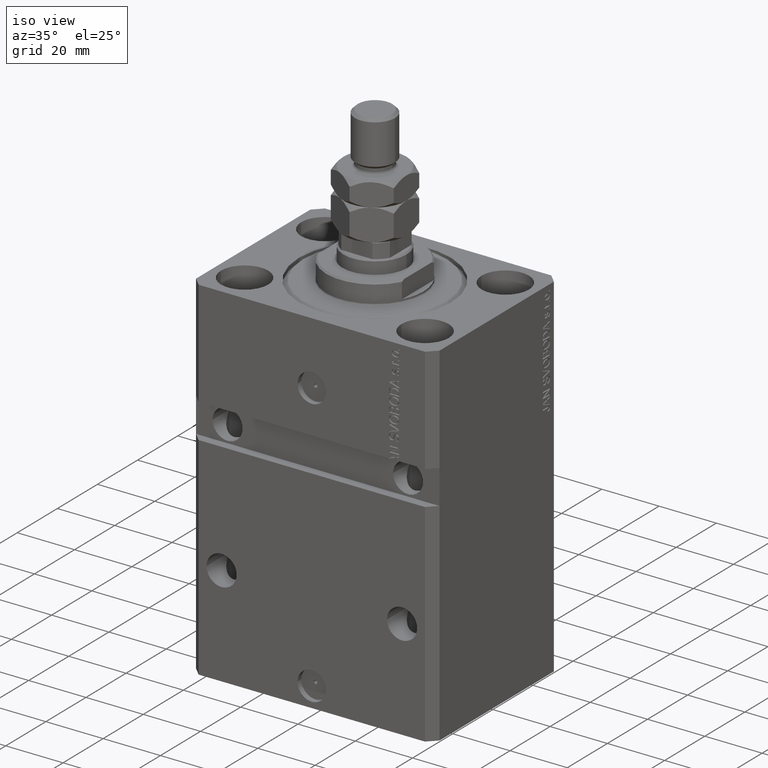
[diagram: clean part render]
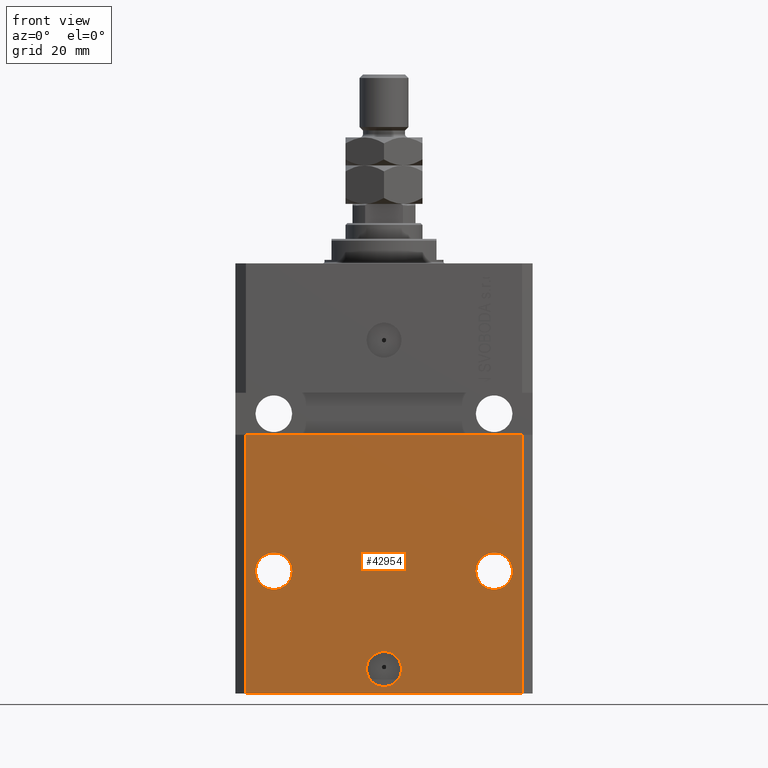
[diagram: tour spotlight — one face highlighted and labeled with its STEP entity id]
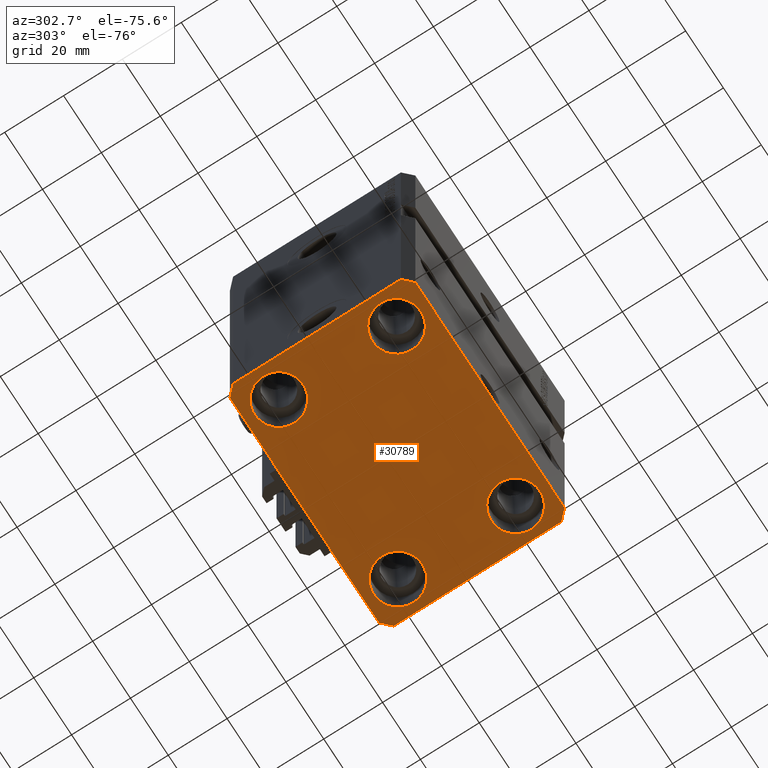
[diagram: tour spotlight — one face highlighted and labeled with its STEP entity id]
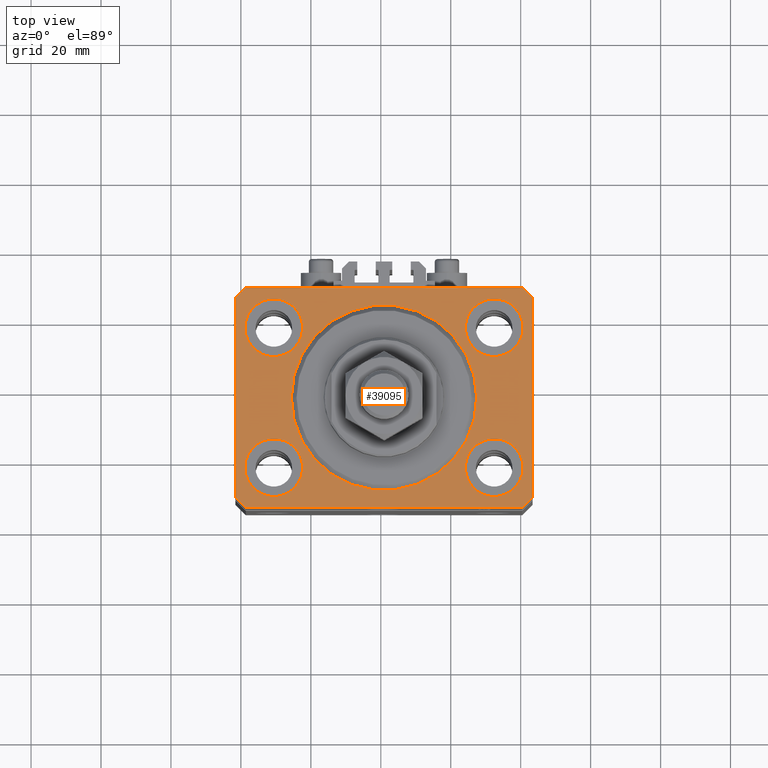
[diagram: tour spotlight — one face highlighted and labeled with its STEP entity id]
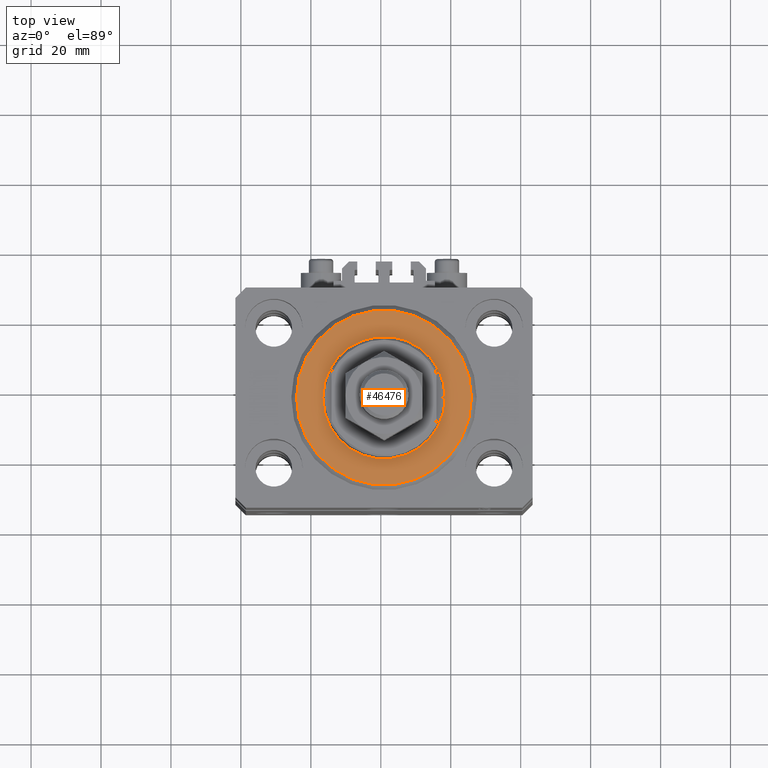
[diagram: tour spotlight — one face highlighted and labeled with its STEP entity id]
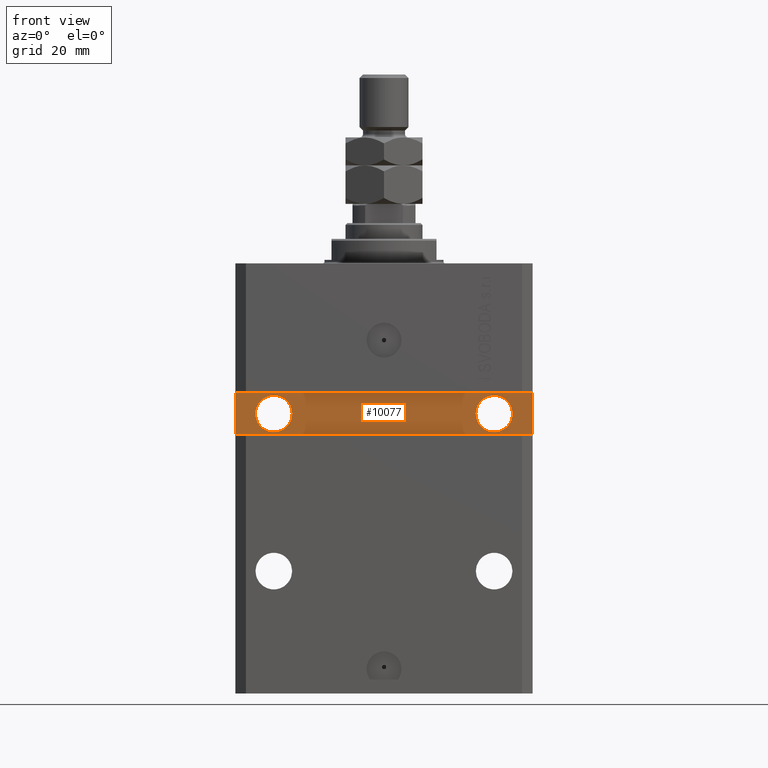
[diagram: tour spotlight — one face highlighted and labeled with its STEP entity id]
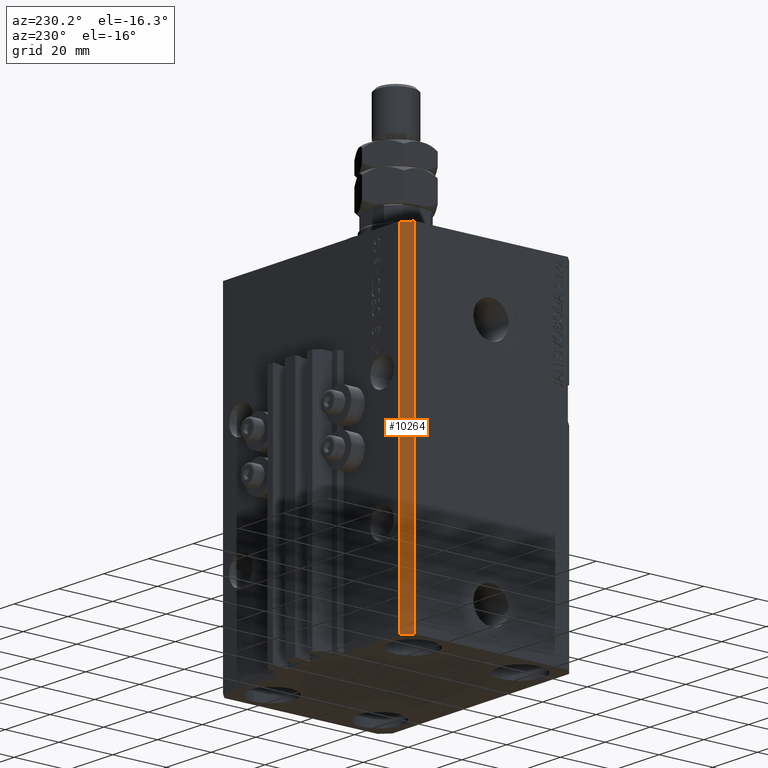
[diagram: tour spotlight — one face highlighted and labeled with its STEP entity id]
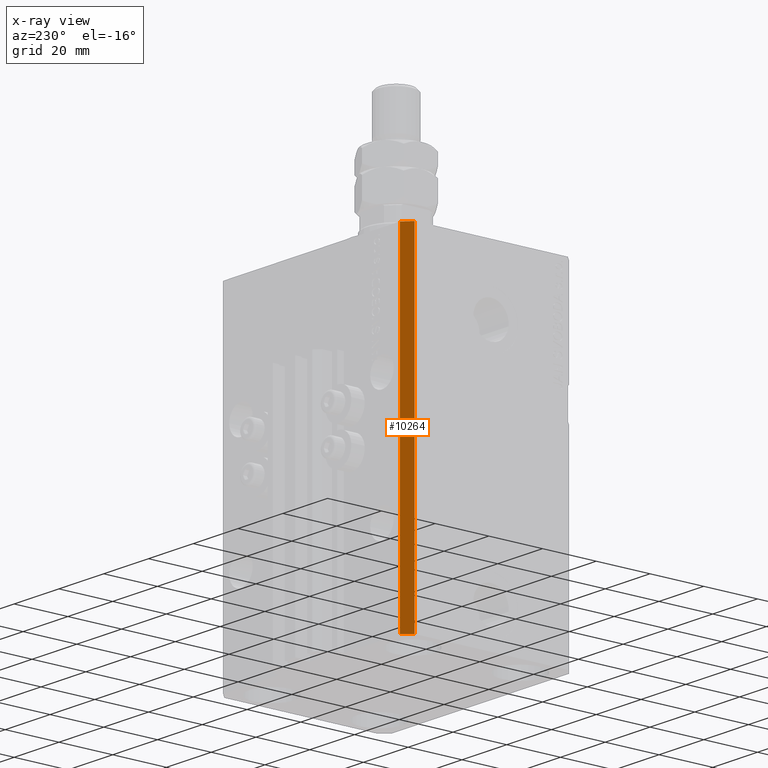
[diagram: x-ray of the same camera — body ghosted, this tour face saturated]
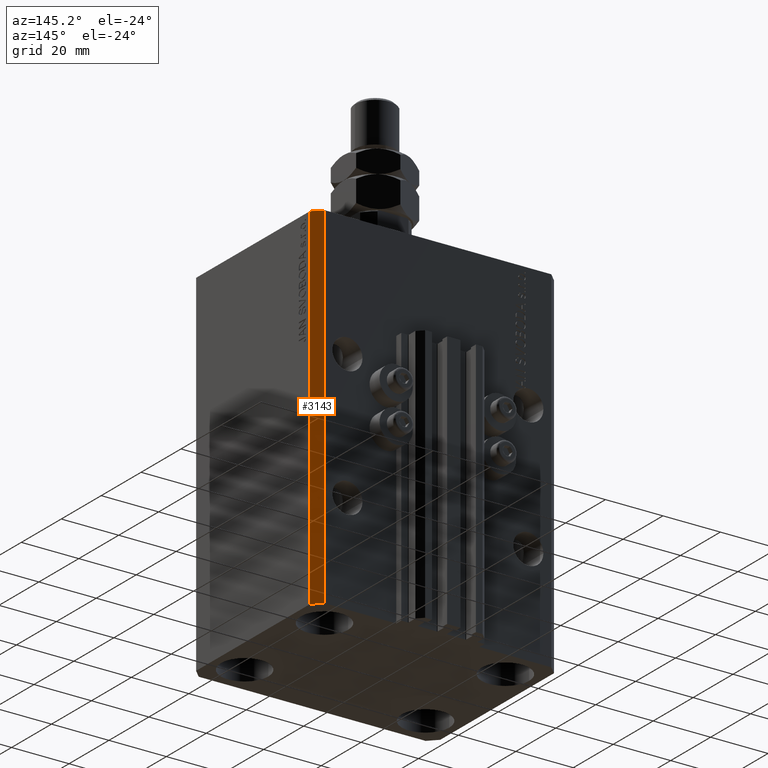
[diagram: tour spotlight — one face highlighted and labeled with its STEP entity id]
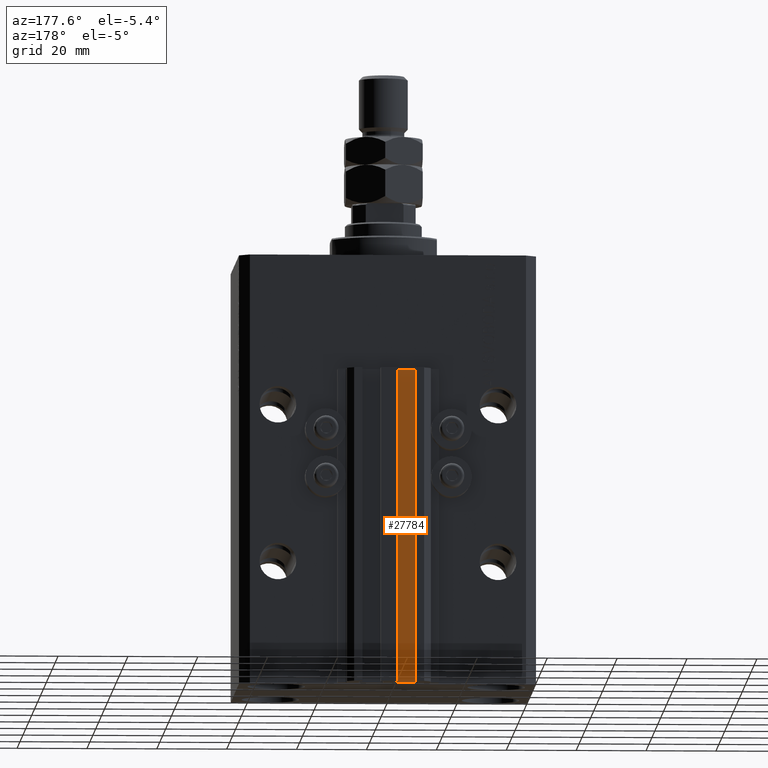
[diagram: tour spotlight — one face highlighted and labeled with its STEP entity id]
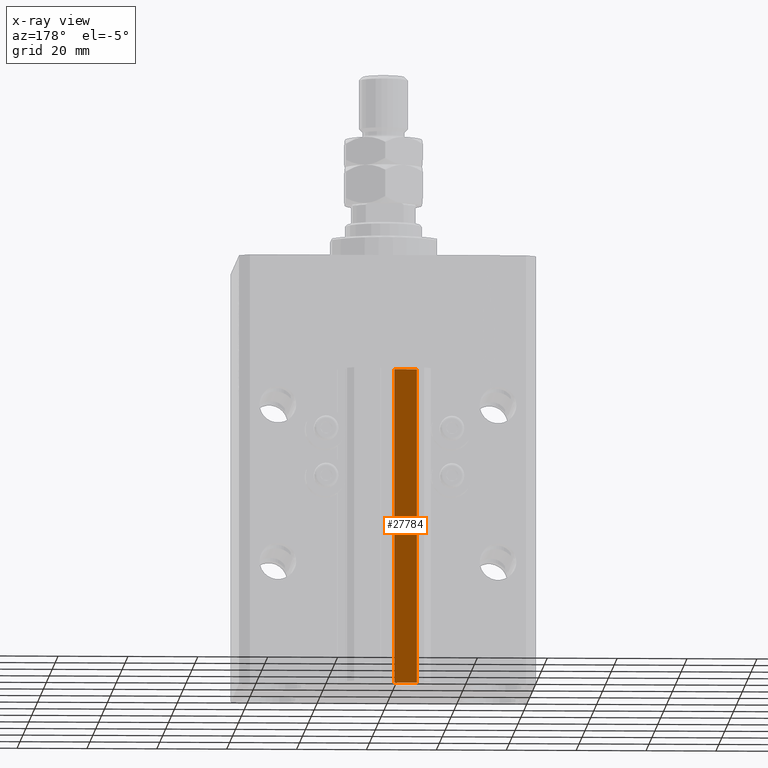
[diagram: x-ray of the same camera — body ghosted, this tour face saturated]
A machine part: a face-by-face anatomy tour. The part has 1156 B-rep faces; the first image is the clean iso view, then the 8 largest visible faces are spotlighted one at a time (largest first), each with its STEP entity span.

Face 1 — front view, entity #42954. In plain terms, the highlighted planar face has unit normal (0, -1, 0).
Definition (entity closure, byte-faithful):
#1673 = CARTESIAN_POINT ( 'NONE',  ( -39.50000000000000711, -31.50000000000000000, -123.0000000000000000 ) ) ;
#1961 = EDGE_LOOP ( 'NONE', ( #27546, #15098 ) ) ;
#2257 = DIRECTION ( 'NONE',  ( 1.176083712526788232E-16, -1.000000000000000000, 0.000000000000000000 ) ) ;
#2286 = EDGE_CURVE ( 'NONE', #9769, #32491, #36152, .T. ) ;
#2619 = VECTOR ( 'NONE', #4843, 1000.000000000000000 ) ;
#2728 = CIRCLE ( 'NONE', #32423, 5.000000000000006217 ) ;
#2789 = CARTESIAN_POINT ( 'NONE',  ( -39.50000000000000000, -31.50000000000000711, -48.99999999999999289 ) ) ;
#3387 = CARTESIAN_POINT ( 'NONE',  ( -39.50000000000000711, -31.50000000000000000, -123.0000000000000000 ) ) ;
#3795 = EDGE_LOOP ( 'NONE', ( #35211, #28955, #19965, #32550 ) ) ;
#3878 = FACE_BOUND ( 'NONE', #17750, .T. ) ;
#4605 = LINE ( 'NONE', #26978, #2619 ) ;
#4843 = DIRECTION ( 'NONE',  ( 0.000000000000000000, 0.000000000000000000, 1.000000000000000000 ) ) ;
#5286 = DIRECTION ( 'NONE',  ( 1.000000000000000000, 0.000000000000000000, 0.000000000000000000 ) ) ;
#5402 = DIRECTION ( 'NONE',  ( 1.176083712526788232E-16, -1.000000000000000000, 0.000000000000000000 ) ) ;
#5623 = VERTEX_POINT ( 'NONE', #17409 ) ;
#7068 = CARTESIAN_POINT ( 'NONE',  ( -36.75000000000001421, -31.50000000000000711, -88.00000000000000000 ) ) ;
#7901 = PLANE ( 'NONE',  #29800 ) ;
#7981 = EDGE_LOOP ( 'NONE', ( #12337, #8658 ) ) ;
#8038 = ORIENTED_EDGE ( 'NONE', *, *, #30730, .F. ) ;
#8658 = ORIENTED_EDGE ( 'NONE', *, *, #13379, .F. ) ;
#9125 = EDGE_CURVE ( 'NONE', #31171, #18890, #28269, .T. ) ;
#9729 = LINE ( 'NONE', #1673, #19156 ) ;
#9769 = VERTEX_POINT ( 'NONE', #41764 ) ;
#10218 = DIRECTION ( 'NONE',  ( 1.176083712526788232E-16, -1.000000000000000000, 0.000000000000000000 ) ) ;
#10725 = EDGE_CURVE ( 'NONE', #28219, #25826, #4605, .T. ) ;
#11042 = CIRCLE ( 'NONE', #33398, 5.249999999999997335 ) ;
#11446 = DIRECTION ( 'NONE',  ( 0.000000000000000000, -0.000000000000000000, -1.000000000000000000 ) ) ;
#12337 = ORIENTED_EDGE ( 'NONE', *, *, #32513, .F. ) ;
#12720 = CARTESIAN_POINT ( 'NONE',  ( 0.000000000000000000, -31.50000000000000000, -115.9999999999999858 ) ) ;
#12726 = CARTESIAN_POINT ( 'NONE',  ( 39.50000000000000711, -31.50000000000000000, -123.0000000000000000 ) ) ;
#12979 = EDGE_CURVE ( 'NONE', #16386, #5623, #18825, .T. ) ;
#13177 = AXIS2_PLACEMENT_3D ( 'NONE', #17362, #2257, #22536 ) ;
#13379 = EDGE_CURVE ( 'NONE', #15293, #19611, #2728, .T. ) ;
#14523 = AXIS2_PLACEMENT_3D ( 'NONE', #35840, #43870, #48377 ) ;
#15098 = ORIENTED_EDGE ( 'NONE', *, *, #22902, .F. ) ;
#15293 = VERTEX_POINT ( 'NONE', #30055 ) ;
#15600 = VECTOR ( 'NONE', #34128, 1000.000000000000000 ) ;
#16386 = VERTEX_POINT ( 'NONE', #12726 ) ;
#16812 = VECTOR ( 'NONE', #45353, 1000.000000000000000 ) ;
#17114 = CARTESIAN_POINT ( 'NONE',  ( 31.50000000000001421, -31.49999999999999289, -88.00000000000000000 ) ) ;
#17362 = CARTESIAN_POINT ( 'NONE',  ( -31.50000000000001421, -31.50000000000000711, -88.00000000000000000 ) ) ;
#17409 = CARTESIAN_POINT ( 'NONE',  ( 39.50000000000001421, -31.49999999999999289, -48.99999999999997868 ) ) ;
#17509 = CARTESIAN_POINT ( 'NONE',  ( 31.50000000000001421, -31.49999999999999289, -88.00000000000000000 ) ) ;
#17750 = EDGE_LOOP ( 'NONE', ( #8038, #30038 ) ) ;
#18645 = CARTESIAN_POINT ( 'NONE',  ( 0.000000000000000000, -31.50000000000000000, -115.9999999999999858 ) ) ;
#18727 = FACE_BOUND ( 'NONE', #1961, .T. ) ;
#18825 = LINE ( 'NONE', #19578, #15600 ) ;
#18890 = VERTEX_POINT ( 'NONE', #30112 ) ;
#19156 = VECTOR ( 'NONE', #25297, 1000.000000000000000 ) ;
#19578 = CARTESIAN_POINT ( 'NONE',  ( 39.50000000000000711, -31.50000000000000000, -123.0000000000000000 ) ) ;
#19611 = VERTEX_POINT ( 'NONE', #28455 ) ;
#19965 = ORIENTED_EDGE ( 'NONE', *, *, #45333, .T. ) ;
#22536 = DIRECTION ( 'NONE',  ( -1.000000000000000000, 0.000000000000000000, 0.000000000000000000 ) ) ;
#22902 = EDGE_CURVE ( 'NONE', #32491, #9769, #34805, .T. ) ;
#23046 = CIRCLE ( 'NONE', #46309, 5.000000000000006217 ) ;
#25297 = DIRECTION ( 'NONE',  ( 1.000000000000000000, 0.000000000000000000, 0.000000000000000000 ) ) ;
#25826 = VERTEX_POINT ( 'NONE', #2789 ) ;
#26012 = FACE_BOUND ( 'NONE', #7981, .T. ) ;
#26978 = CARTESIAN_POINT ( 'NONE',  ( -39.50000000000000711, -31.50000000000000000, -123.0000000000000000 ) ) ;
#27546 = ORIENTED_EDGE ( 'NONE', *, *, #2286, .F. ) ;
#28219 = VERTEX_POINT ( 'NONE', #49352 ) ;
#28269 = CIRCLE ( 'NONE', #33059, 5.249999999999997335 ) ;
#28455 = CARTESIAN_POINT ( 'NONE',  ( 5.000000000000006217, -31.50000000000000000, -115.9999999999999858 ) ) ;
#28955 = ORIENTED_EDGE ( 'NONE', *, *, #10725, .F. ) ;
#29800 = AXIS2_PLACEMENT_3D ( 'NONE', #3387, #34523, #11446 ) ;
#30038 = ORIENTED_EDGE ( 'NONE', *, *, #9125, .F. ) ;
#30055 = CARTESIAN_POINT ( 'NONE',  ( -5.000000000000006217, -31.50000000000000000, -115.9999999999999858 ) ) ;
#30112 = CARTESIAN_POINT ( 'NONE',  ( 36.75000000000001421, -31.49999999999999289, -88.00000000000000000 ) ) ;
#30730 = EDGE_CURVE ( 'NONE', #18890, #31171, #11042, .T. ) ;
#31171 = VERTEX_POINT ( 'NONE', #36399 ) ;
#32423 = AXIS2_PLACEMENT_3D ( 'NONE', #12720, #5402, #35791 ) ;
#32491 = VERTEX_POINT ( 'NONE', #7068 ) ;
#32513 = EDGE_CURVE ( 'NONE', #19611, #15293, #23046, .T. ) ;
#32550 = ORIENTED_EDGE ( 'NONE', *, *, #12979, .T. ) ;
#33059 = AXIS2_PLACEMENT_3D ( 'NONE', #17114, #35925, #5286 ) ;
#33398 = AXIS2_PLACEMENT_3D ( 'NONE', #17509, #10218, #36079 ) ;
#34029 = FACE_OUTER_BOUND ( 'NONE', #3795, .T. ) ;
#34128 = DIRECTION ( 'NONE',  ( 0.000000000000000000, 0.000000000000000000, 1.000000000000000000 ) ) ;
#34523 = DIRECTION ( 'NONE',  ( 0.000000000000000000, -1.000000000000000000, 0.000000000000000000 ) ) ;
#34805 = CIRCLE ( 'NONE', #13177, 5.249999999999997335 ) ;
#35211 = ORIENTED_EDGE ( 'NONE', *, *, #37396, .F. ) ;
#35791 = DIRECTION ( 'NONE',  ( 1.000000000000000000, 0.000000000000000000, 0.000000000000000000 ) ) ;
#35840 = CARTESIAN_POINT ( 'NONE',  ( -31.50000000000001421, -31.50000000000000711, -88.00000000000000000 ) ) ;
#35925 = DIRECTION ( 'NONE',  ( 1.176083712526788232E-16, -1.000000000000000000, 0.000000000000000000 ) ) ;
#36079 = DIRECTION ( 'NONE',  ( 1.000000000000000000, 0.000000000000000000, 0.000000000000000000 ) ) ;
#36152 = CIRCLE ( 'NONE', #14523, 5.249999999999997335 ) ;
#36399 = CARTESIAN_POINT ( 'NONE',  ( 26.25000000000001776, -31.49999999999999289, -88.00000000000000000 ) ) ;
#37396 = EDGE_CURVE ( 'NONE', #25826, #5623, #42081, .T. ) ;
#37576 = CARTESIAN_POINT ( 'NONE',  ( -42.50000000000000000, -31.50000000000000711, -48.99999999999999289 ) ) ;
#41764 = CARTESIAN_POINT ( 'NONE',  ( -26.25000000000001776, -31.50000000000000711, -88.00000000000000000 ) ) ;
#42081 = LINE ( 'NONE', #37576, #16812 ) ;
#42954 = ADVANCED_FACE ( 'NONE', ( #26012, #3878, #18727, #34029 ), #7901, .T. ) ;
#43870 = DIRECTION ( 'NONE',  ( 1.176083712526788232E-16, -1.000000000000000000, 0.000000000000000000 ) ) ;
#45333 = EDGE_CURVE ( 'NONE', #28219, #16386, #9729, .T. ) ;
#45353 = DIRECTION ( 'NONE',  ( 1.000000000000000000, 1.632680918566406300E-16, 1.632680918566406300E-16 ) ) ;
#46309 = AXIS2_PLACEMENT_3D ( 'NONE', #18645, #49270, #48760 ) ;
#48377 = DIRECTION ( 'NONE',  ( -1.000000000000000000, 0.000000000000000000, 0.000000000000000000 ) ) ;
#48760 = DIRECTION ( 'NONE',  ( 1.000000000000000000, 0.000000000000000000, 0.000000000000000000 ) ) ;
#49270 = DIRECTION ( 'NONE',  ( 1.176083712526788232E-16, -1.000000000000000000, 0.000000000000000000 ) ) ;
#49352 = CARTESIAN_POINT ( 'NONE',  ( -39.50000000000000711, -31.50000000000000000, -123.0000000000000000 ) ) ;

Face 2 — auxiliary view, entity #30789. In plain terms, the highlighted planar face has unit normal (0, 0, 1).
Definition (entity closure, byte-faithful):
#154 = EDGE_CURVE ( 'NONE', #38741, #13251, #10422, .T. ) ;
#349 = LINE ( 'NONE', #19208, #19071 ) ;
#485 = VERTEX_POINT ( 'NONE', #23257 ) ;
#1063 = VECTOR ( 'NONE', #26695, 1000.000000000000114 ) ;
#1190 = DIRECTION ( 'NONE',  ( 1.000000000000000000, 0.000000000000000000, 0.000000000000000000 ) ) ;
#1384 = CARTESIAN_POINT ( 'NONE',  ( 42.50000000000000711, -28.50000000000000355, -123.0000000000000000 ) ) ;
#1601 = DIRECTION ( 'NONE',  ( -1.000000000000000000, 0.000000000000000000, 0.000000000000000000 ) ) ;
#1673 = CARTESIAN_POINT ( 'NONE',  ( -39.50000000000000711, -31.50000000000000000, -123.0000000000000000 ) ) ;
#1841 = VERTEX_POINT ( 'NONE', #27404 ) ;
#2004 = CARTESIAN_POINT ( 'NONE',  ( -42.50000000000000000, -28.50000000000000000, -123.0000000000000000 ) ) ;
#2076 = LINE ( 'NONE', #32485, #1063 ) ;
#2236 = VECTOR ( 'NONE', #1601, 1000.000000000000000 ) ;
#2456 = CARTESIAN_POINT ( 'NONE',  ( -31.50000000000000000, -20.00000000000000000, -123.0000000000000000 ) ) ;
#3048 = EDGE_CURVE ( 'NONE', #27013, #485, #32173, .T. ) ;
#3407 = CARTESIAN_POINT ( 'NONE',  ( 0.000000000000000000, 0.000000000000000000, -123.0000000000000000 ) ) ;
#3651 = FACE_BOUND ( 'NONE', #44533, .T. ) ;
#4026 = CARTESIAN_POINT ( 'NONE',  ( 39.74999999999999289, -20.00000000000000000, -123.0000000000000000 ) ) ;
#4613 = CIRCLE ( 'NONE', #27104, 8.249999999999992895 ) ;
#4757 = ORIENTED_EDGE ( 'NONE', *, *, #19343, .T. ) ;
#5038 = EDGE_CURVE ( 'NONE', #26781, #17312, #42688, .T. ) ;
#5254 = EDGE_CURVE ( 'NONE', #40460, #9229, #27545, .T. ) ;
#5959 = CARTESIAN_POINT ( 'NONE',  ( 31.50000000000000000, 20.00000000000001066, -123.0000000000000000 ) ) ;
#6687 = CIRCLE ( 'NONE', #34774, 8.250000000000000000 ) ;
#6794 = CIRCLE ( 'NONE', #29274, 8.249999999999992895 ) ;
#7350 = CARTESIAN_POINT ( 'NONE',  ( 39.50000000000000711, -31.50000000000000000, -123.0000000000000000 ) ) ;
#8451 = DIRECTION ( 'NONE',  ( 0.000000000000000000, -1.000000000000000000, 0.000000000000000000 ) ) ;
#8631 = AXIS2_PLACEMENT_3D ( 'NONE', #3407, #18747, #34049 ) ;
#8652 = ORIENTED_EDGE ( 'NONE', *, *, #39900, .F. ) ;
#9229 = VERTEX_POINT ( 'NONE', #2004 ) ;
#9729 = LINE ( 'NONE', #1673, #19156 ) ;
#9984 = CARTESIAN_POINT ( 'NONE',  ( 23.25000000000000355, -20.00000000000000000, -123.0000000000000000 ) ) ;
#10311 = DIRECTION ( 'NONE',  ( 1.000000000000000000, 0.000000000000000000, 0.000000000000000000 ) ) ;
#10357 = ORIENTED_EDGE ( 'NONE', *, *, #45333, .F. ) ;
#10422 = CIRCLE ( 'NONE', #32886, 8.250000000000000000 ) ;
#10478 = CARTESIAN_POINT ( 'NONE',  ( -42.50000000000000000, 28.50000000000000000, -123.0000000000000000 ) ) ;
#10648 = EDGE_LOOP ( 'NONE', ( #17310, #41270 ) ) ;
#11144 = DIRECTION ( 'NONE',  ( 0.7071067811865483499, 0.7071067811865466846, 0.000000000000000000 ) ) ;
#11847 = AXIS2_PLACEMENT_3D ( 'NONE', #2456, #21812, #37117 ) ;
#11889 = LINE ( 'NONE', #38725, #43475 ) ;
#12151 = ORIENTED_EDGE ( 'NONE', *, *, #17978, .F. ) ;
#12155 = EDGE_LOOP ( 'NONE', ( #31939, #38411 ) ) ;
#12479 = DIRECTION ( 'NONE',  ( 1.000000000000000000, 0.000000000000000000, 0.000000000000000000 ) ) ;
#12526 = DIRECTION ( 'NONE',  ( -0.000000000000000000, -0.000000000000000000, 1.000000000000000000 ) ) ;
#12726 = CARTESIAN_POINT ( 'NONE',  ( 39.50000000000000711, -31.50000000000000000, -123.0000000000000000 ) ) ;
#13067 = CIRCLE ( 'NONE', #28289, 8.249999999999992895 ) ;
#13251 = VERTEX_POINT ( 'NONE', #30805 ) ;
#16386 = VERTEX_POINT ( 'NONE', #12726 ) ;
#16979 = CARTESIAN_POINT ( 'NONE',  ( -31.50000000000000000, 20.00000000000000000, -123.0000000000000000 ) ) ;
#17310 = ORIENTED_EDGE ( 'NONE', *, *, #3048, .T. ) ;
#17312 = VERTEX_POINT ( 'NONE', #39327 ) ;
#17703 = EDGE_LOOP ( 'NONE', ( #33112, #45813, #23786, #8652, #10357, #12151, #38051, #23978 ) ) ;
#17788 = CARTESIAN_POINT ( 'NONE',  ( -39.75000000000000000, 20.00000000000000000, -123.0000000000000000 ) ) ;
#17793 = EDGE_CURVE ( 'NONE', #46838, #34352, #2076, .T. ) ;
#17978 = EDGE_CURVE ( 'NONE', #9229, #28219, #11889, .T. ) ;
#18747 = DIRECTION ( 'NONE',  ( 0.000000000000000000, 0.000000000000000000, 1.000000000000000000 ) ) ;
#18820 = CARTESIAN_POINT ( 'NONE',  ( -31.50000000000000000, 20.00000000000000000, -123.0000000000000000 ) ) ;
#19071 = VECTOR ( 'NONE', #30748, 1000.000000000000000 ) ;
#19156 = VECTOR ( 'NONE', #25297, 1000.000000000000000 ) ;
#19208 = CARTESIAN_POINT ( 'NONE',  ( -39.50000000000000711, 31.50000000000000000, -123.0000000000000000 ) ) ;
#19331 = VERTEX_POINT ( 'NONE', #20306 ) ;
#19343 = EDGE_CURVE ( 'NONE', #30191, #21404, #13067, .T. ) ;
#19613 = ORIENTED_EDGE ( 'NONE', *, *, #33596, .T. ) ;
#20148 = CARTESIAN_POINT ( 'NONE',  ( 39.50000000000056843, 31.50000000000000000, -123.0000000000000000 ) ) ;
#20306 = CARTESIAN_POINT ( 'NONE',  ( -39.50000000000000711, 31.50000000000000000, -123.0000000000000000 ) ) ;
#20401 = VECTOR ( 'NONE', #43827, 1000.000000000000000 ) ;
#20474 = LINE ( 'NONE', #36015, #2236 ) ;
#21301 = DIRECTION ( 'NONE',  ( -0.000000000000000000, -0.000000000000000000, 1.000000000000000000 ) ) ;
#21404 = VERTEX_POINT ( 'NONE', #9984 ) ;
#21595 = EDGE_CURVE ( 'NONE', #485, #27013, #6687, .T. ) ;
#21812 = DIRECTION ( 'NONE',  ( -0.000000000000000000, -0.000000000000000000, 1.000000000000000000 ) ) ;
#22255 = PLANE ( 'NONE',  #8631 ) ;
#22370 = EDGE_CURVE ( 'NONE', #1841, #46838, #31305, .T. ) ;
#22501 = FACE_BOUND ( 'NONE', #36127, .T. ) ;
#23257 = CARTESIAN_POINT ( 'NONE',  ( -23.25000000000000000, 20.00000000000000000, -123.0000000000000000 ) ) ;
#23573 = DIRECTION ( 'NONE',  ( 1.000000000000000000, 0.000000000000000000, 0.000000000000000000 ) ) ;
#23786 = ORIENTED_EDGE ( 'NONE', *, *, #22370, .F. ) ;
#23978 = ORIENTED_EDGE ( 'NONE', *, *, #33166, .F. ) ;
#24068 = DIRECTION ( 'NONE',  ( -0.000000000000000000, -0.000000000000000000, 1.000000000000000000 ) ) ;
#24548 = EDGE_CURVE ( 'NONE', #17312, #26781, #6794, .T. ) ;
#25222 = CARTESIAN_POINT ( 'NONE',  ( 31.50000000000000000, 20.00000000000001066, -123.0000000000000000 ) ) ;
#25297 = DIRECTION ( 'NONE',  ( 1.000000000000000000, 0.000000000000000000, 0.000000000000000000 ) ) ;
#26491 = VECTOR ( 'NONE', #11144, 1000.000000000000000 ) ;
#26603 = AXIS2_PLACEMENT_3D ( 'NONE', #18820, #38381, #45665 ) ;
#26695 = DIRECTION ( 'NONE',  ( -0.7071067811865356934, 0.7071067811865594521, 0.000000000000000000 ) ) ;
#26781 = VERTEX_POINT ( 'NONE', #27122 ) ;
#27013 = VERTEX_POINT ( 'NONE', #17788 ) ;
#27104 = AXIS2_PLACEMENT_3D ( 'NONE', #37419, #33904, #10311 ) ;
#27122 = CARTESIAN_POINT ( 'NONE',  ( 39.74999999999999289, 20.00000000000001066, -123.0000000000000000 ) ) ;
#27404 = CARTESIAN_POINT ( 'NONE',  ( 42.50000000000000711, -28.50000000000000355, -123.0000000000000000 ) ) ;
#27545 = LINE ( 'NONE', #42848, #29842 ) ;
#27586 = CARTESIAN_POINT ( 'NONE',  ( -31.50000000000000000, -20.00000000000000000, -123.0000000000000000 ) ) ;
#27683 = DIRECTION ( 'NONE',  ( 0.7071067811865471286, -0.7071067811865479058, 0.000000000000000000 ) ) ;
#27831 = CARTESIAN_POINT ( 'NONE',  ( 31.50000000000000000, -20.00000000000000000, -123.0000000000000000 ) ) ;
#28219 = VERTEX_POINT ( 'NONE', #49352 ) ;
#28274 = AXIS2_PLACEMENT_3D ( 'NONE', #5959, #21301, #36593 ) ;
#28289 = AXIS2_PLACEMENT_3D ( 'NONE', #27831, #24068, #1190 ) ;
#29073 = EDGE_CURVE ( 'NONE', #13251, #38741, #47088, .T. ) ;
#29274 = AXIS2_PLACEMENT_3D ( 'NONE', #25222, #47311, #32247 ) ;
#29842 = VECTOR ( 'NONE', #8451, 1000.000000000000000 ) ;
#30034 = FACE_BOUND ( 'NONE', #12155, .T. ) ;
#30191 = VERTEX_POINT ( 'NONE', #4026 ) ;
#30748 = DIRECTION ( 'NONE',  ( -0.7071067811865471286, -0.7071067811865479058, 0.000000000000000000 ) ) ;
#30789 = ADVANCED_FACE ( 'NONE', ( #3651, #22501, #30034, #45846, #37814 ), #22255, .F. ) ;
#30805 = CARTESIAN_POINT ( 'NONE',  ( -39.75000000000000000, -20.00000000000000000, -123.0000000000000000 ) ) ;
#31305 = LINE ( 'NONE', #1384, #20401 ) ;
#31778 = DIRECTION ( 'NONE',  ( -0.000000000000000000, -0.000000000000000000, 1.000000000000000000 ) ) ;
#31939 = ORIENTED_EDGE ( 'NONE', *, *, #24548, .T. ) ;
#32173 = CIRCLE ( 'NONE', #26603, 8.250000000000000000 ) ;
#32247 = DIRECTION ( 'NONE',  ( 1.000000000000000000, 0.000000000000000000, 0.000000000000000000 ) ) ;
#32485 = CARTESIAN_POINT ( 'NONE',  ( 42.50000000000051870, 28.49999999999995381, -123.0000000000000000 ) ) ;
#32886 = AXIS2_PLACEMENT_3D ( 'NONE', #27586, #12526, #23573 ) ;
#33112 = ORIENTED_EDGE ( 'NONE', *, *, #44594, .F. ) ;
#33166 = EDGE_CURVE ( 'NONE', #19331, #40460, #349, .T. ) ;
#33596 = EDGE_CURVE ( 'NONE', #21404, #30191, #4613, .T. ) ;
#33904 = DIRECTION ( 'NONE',  ( -0.000000000000000000, -0.000000000000000000, 1.000000000000000000 ) ) ;
#34049 = DIRECTION ( 'NONE',  ( 1.000000000000000000, 0.000000000000000000, -0.000000000000000000 ) ) ;
#34352 = VERTEX_POINT ( 'NONE', #20148 ) ;
#34774 = AXIS2_PLACEMENT_3D ( 'NONE', #16979, #31778, #12479 ) ;
#36015 = CARTESIAN_POINT ( 'NONE',  ( 39.50000000000056843, 31.50000000000000000, -123.0000000000000000 ) ) ;
#36127 = EDGE_LOOP ( 'NONE', ( #19613, #4757 ) ) ;
#36593 = DIRECTION ( 'NONE',  ( 1.000000000000000000, 0.000000000000000000, 0.000000000000000000 ) ) ;
#37117 = DIRECTION ( 'NONE',  ( 1.000000000000000000, 0.000000000000000000, 0.000000000000000000 ) ) ;
#37419 = CARTESIAN_POINT ( 'NONE',  ( 31.50000000000000000, -20.00000000000000000, -123.0000000000000000 ) ) ;
#37814 = FACE_OUTER_BOUND ( 'NONE', #17703, .T. ) ;
#38051 = ORIENTED_EDGE ( 'NONE', *, *, #5254, .F. ) ;
#38381 = DIRECTION ( 'NONE',  ( -0.000000000000000000, -0.000000000000000000, 1.000000000000000000 ) ) ;
#38411 = ORIENTED_EDGE ( 'NONE', *, *, #5038, .T. ) ;
#38725 = CARTESIAN_POINT ( 'NONE',  ( -42.50000000000000000, -28.50000000000000000, -123.0000000000000000 ) ) ;
#38741 = VERTEX_POINT ( 'NONE', #40798 ) ;
#39327 = CARTESIAN_POINT ( 'NONE',  ( 23.25000000000000355, 20.00000000000001066, -123.0000000000000000 ) ) ;
#39805 = ORIENTED_EDGE ( 'NONE', *, *, #154, .T. ) ;
#39900 = EDGE_CURVE ( 'NONE', #16386, #1841, #45527, .T. ) ;
#40140 = CARTESIAN_POINT ( 'NONE',  ( 42.50000000000051870, 28.49999999999995381, -123.0000000000000000 ) ) ;
#40460 = VERTEX_POINT ( 'NONE', #10478 ) ;
#40711 = ORIENTED_EDGE ( 'NONE', *, *, #29073, .T. ) ;
#40798 = CARTESIAN_POINT ( 'NONE',  ( -23.25000000000000000, -20.00000000000000000, -123.0000000000000000 ) ) ;
#41270 = ORIENTED_EDGE ( 'NONE', *, *, #21595, .T. ) ;
#42688 = CIRCLE ( 'NONE', #28274, 8.249999999999992895 ) ;
#42848 = CARTESIAN_POINT ( 'NONE',  ( -42.50000000000000000, 28.50000000000000000, -123.0000000000000000 ) ) ;
#43475 = VECTOR ( 'NONE', #27683, 1000.000000000000000 ) ;
#43827 = DIRECTION ( 'NONE',  ( 8.886653596232072440E-15, 1.000000000000000000, 0.000000000000000000 ) ) ;
#44533 = EDGE_LOOP ( 'NONE', ( #40711, #39805 ) ) ;
#44594 = EDGE_CURVE ( 'NONE', #34352, #19331, #20474, .T. ) ;
#45333 = EDGE_CURVE ( 'NONE', #28219, #16386, #9729, .T. ) ;
#45527 = LINE ( 'NONE', #7350, #26491 ) ;
#45665 = DIRECTION ( 'NONE',  ( 1.000000000000000000, 0.000000000000000000, 0.000000000000000000 ) ) ;
#45813 = ORIENTED_EDGE ( 'NONE', *, *, #17793, .F. ) ;
#45846 = FACE_BOUND ( 'NONE', #10648, .T. ) ;
#46838 = VERTEX_POINT ( 'NONE', #40140 ) ;
#47088 = CIRCLE ( 'NONE', #11847, 8.250000000000000000 ) ;
#47311 = DIRECTION ( 'NONE',  ( -0.000000000000000000, -0.000000000000000000, 1.000000000000000000 ) ) ;
#49352 = CARTESIAN_POINT ( 'NONE',  ( -39.50000000000000711, -31.50000000000000000, -123.0000000000000000 ) ) ;

Face 3 — top view, entity #39095. In plain terms, the highlighted planar face has unit normal (0, 0, 1).
Definition (entity closure, byte-faithful):
#367 = VERTEX_POINT ( 'NONE', #18751 ) ;
#1368 = VECTOR ( 'NONE', #42879, 1000.000000000000000 ) ;
#1503 = DIRECTION ( 'NONE',  ( 1.000000000000000000, 0.000000000000000000, 0.000000000000000000 ) ) ;
#2121 = VERTEX_POINT ( 'NONE', #12528 ) ;
#2135 = LINE ( 'NONE', #44328, #37518 ) ;
#3216 = VERTEX_POINT ( 'NONE', #21532 ) ;
#3518 = PLANE ( 'NONE',  #33677 ) ;
#3529 = ORIENTED_EDGE ( 'NONE', *, *, #21220, .T. ) ;
#3637 = VERTEX_POINT ( 'NONE', #15936 ) ;
#3674 = DIRECTION ( 'NONE',  ( 0.7071067811865483499, 0.7071067811865466846, 0.000000000000000000 ) ) ;
#3767 = EDGE_CURVE ( 'NONE', #7294, #41432, #43264, .T. ) ;
#3931 = AXIS2_PLACEMENT_3D ( 'NONE', #27412, #34184, #22888 ) ;
#4268 = CIRCLE ( 'NONE', #42770, 8.249999999999992895 ) ;
#4509 = DIRECTION ( 'NONE',  ( 0.000000000000000000, 0.000000000000000000, 1.000000000000000000 ) ) ;
#5010 = VERTEX_POINT ( 'NONE', #21785 ) ;
#5597 = ORIENTED_EDGE ( 'NONE', *, *, #45667, .T. ) ;
#5861 = CIRCLE ( 'NONE', #21909, 8.250000000000000000 ) ;
#6172 = AXIS2_PLACEMENT_3D ( 'NONE', #21117, #46983, #1503 ) ;
#6220 = AXIS2_PLACEMENT_3D ( 'NONE', #44713, #40935, #24918 ) ;
#6430 = VERTEX_POINT ( 'NONE', #8886 ) ;
#6770 = DIRECTION ( 'NONE',  ( 0.7071067811865471286, -0.7071067811865479058, 0.000000000000000000 ) ) ;
#6846 = EDGE_CURVE ( 'NONE', #37920, #33486, #24345, .T. ) ;
#7029 = FACE_BOUND ( 'NONE', #26555, .T. ) ;
#7294 = VERTEX_POINT ( 'NONE', #15116 ) ;
#7501 = DIRECTION ( 'NONE',  ( 0.000000000000000000, 0.000000000000000000, 1.000000000000000000 ) ) ;
#7582 = EDGE_CURVE ( 'NONE', #10031, #44763, #20328, .T. ) ;
#8886 = CARTESIAN_POINT ( 'NONE',  ( -26.50000000000000355, 3.245314017740486554E-15, 0.000000000000000000 ) ) ;
#8955 = DIRECTION ( 'NONE',  ( 0.000000000000000000, 0.000000000000000000, 1.000000000000000000 ) ) ;
#9247 = DIRECTION ( 'NONE',  ( -0.7071067811865356934, 0.7071067811865594521, 0.000000000000000000 ) ) ;
#9575 = DIRECTION ( 'NONE',  ( 0.000000000000000000, 0.000000000000000000, 1.000000000000000000 ) ) ;
#9674 = DIRECTION ( 'NONE',  ( 1.000000000000000000, 0.000000000000000000, 0.000000000000000000 ) ) ;
#10031 = VERTEX_POINT ( 'NONE', #36208 ) ;
#10154 = CARTESIAN_POINT ( 'NONE',  ( -23.25000000000000000, -20.00000000000000000, 0.000000000000000000 ) ) ;
#10680 = DIRECTION ( 'NONE',  ( 0.000000000000000000, 0.000000000000000000, 1.000000000000000000 ) ) ;
#10776 = EDGE_LOOP ( 'NONE', ( #24651, #17800 ) ) ;
#10827 = FACE_BOUND ( 'NONE', #10776, .T. ) ;
#10900 = DIRECTION ( 'NONE',  ( 0.000000000000000000, 0.000000000000000000, 1.000000000000000000 ) ) ;
#11291 = CARTESIAN_POINT ( 'NONE',  ( 31.50000000000000000, -20.00000000000000000, 0.000000000000000000 ) ) ;
#11400 = CIRCLE ( 'NONE', #20215, 8.250000000000000000 ) ;
#11627 = CARTESIAN_POINT ( 'NONE',  ( 23.25000000000000355, 20.00000000000001066, 0.000000000000000000 ) ) ;
#11845 = CIRCLE ( 'NONE', #6172, 26.50000000000000355 ) ;
#12528 = CARTESIAN_POINT ( 'NONE',  ( -23.25000000000000000, 20.00000000000000000, 0.000000000000000000 ) ) ;
#12968 = EDGE_LOOP ( 'NONE', ( #34877, #31258 ) ) ;
#12985 = EDGE_CURVE ( 'NONE', #24422, #20117, #34828, .T. ) ;
#13400 = DIRECTION ( 'NONE',  ( 1.000000000000000000, 0.000000000000000000, 0.000000000000000000 ) ) ;
#14656 = DIRECTION ( 'NONE',  ( 8.886653596232072440E-15, 1.000000000000000000, 0.000000000000000000 ) ) ;
#14919 = DIRECTION ( 'NONE',  ( 1.000000000000000000, 0.000000000000000000, 0.000000000000000000 ) ) ;
#15116 = CARTESIAN_POINT ( 'NONE',  ( -39.50000000000000711, -31.50000000000000000, 0.000000000000000000 ) ) ;
#15491 = CARTESIAN_POINT ( 'NONE',  ( 39.50000000000056843, 31.50000000000000000, 0.000000000000000000 ) ) ;
#15649 = CARTESIAN_POINT ( 'NONE',  ( -42.50000000000000000, 28.50000000000000000, 0.000000000000000000 ) ) ;
#15936 = CARTESIAN_POINT ( 'NONE',  ( 42.50000000000051870, 28.49999999999995381, 0.000000000000000000 ) ) ;
#16235 = ORIENTED_EDGE ( 'NONE', *, *, #3767, .T. ) ;
#16755 = VECTOR ( 'NONE', #30790, 1000.000000000000000 ) ;
#17016 = EDGE_CURVE ( 'NONE', #33486, #37920, #4268, .T. ) ;
#17800 = ORIENTED_EDGE ( 'NONE', *, *, #12985, .F. ) ;
#18751 = CARTESIAN_POINT ( 'NONE',  ( -42.50000000000000000, -28.50000000000000000, 0.000000000000000000 ) ) ;
#18810 = AXIS2_PLACEMENT_3D ( 'NONE', #11291, #7501, #30863 ) ;
#18837 = CARTESIAN_POINT ( 'NONE',  ( -42.50000000000000000, -28.50000000000000000, 0.000000000000000000 ) ) ;
#18909 = LINE ( 'NONE', #15649, #32930 ) ;
#19522 = CARTESIAN_POINT ( 'NONE',  ( 39.50000000000000711, -31.50000000000000000, 0.000000000000000000 ) ) ;
#20117 = VERTEX_POINT ( 'NONE', #38387 ) ;
#20215 = AXIS2_PLACEMENT_3D ( 'NONE', #37501, #10900, #14919 ) ;
#20219 = VECTOR ( 'NONE', #13400, 1000.000000000000000 ) ;
#20223 = EDGE_LOOP ( 'NONE', ( #5597, #22566, #25663, #37226, #16235, #42494, #37930, #3529 ) ) ;
#20328 = CIRCLE ( 'NONE', #27534, 8.250000000000000000 ) ;
#20331 = CARTESIAN_POINT ( 'NONE',  ( 31.50000000000000000, 20.00000000000001066, 0.000000000000000000 ) ) ;
#20406 = EDGE_CURVE ( 'NONE', #41432, #36342, #22776, .T. ) ;
#20573 = EDGE_CURVE ( 'NONE', #26581, #2121, #5861, .T. ) ;
#20879 = EDGE_CURVE ( 'NONE', #367, #7294, #41664, .T. ) ;
#21117 = CARTESIAN_POINT ( 'NONE',  ( 0.000000000000000000, 0.000000000000000000, 0.000000000000000000 ) ) ;
#21220 = EDGE_CURVE ( 'NONE', #3637, #22646, #43632, .T. ) ;
#21532 = CARTESIAN_POINT ( 'NONE',  ( -42.50000000000000000, 28.50000000000000000, 0.000000000000000000 ) ) ;
#21629 = ORIENTED_EDGE ( 'NONE', *, *, #43281, .F. ) ;
#21724 = CARTESIAN_POINT ( 'NONE',  ( -31.50000000000000000, 20.00000000000000000, 0.000000000000000000 ) ) ;
#21785 = CARTESIAN_POINT ( 'NONE',  ( -39.50000000000000711, 31.50000000000000000, 0.000000000000000000 ) ) ;
#21909 = AXIS2_PLACEMENT_3D ( 'NONE', #21724, #10680, #40776 ) ;
#22566 = ORIENTED_EDGE ( 'NONE', *, *, #29631, .T. ) ;
#22610 = FACE_BOUND ( 'NONE', #12968, .T. ) ;
#22646 = VERTEX_POINT ( 'NONE', #23726 ) ;
#22764 = VECTOR ( 'NONE', #6770, 1000.000000000000000 ) ;
#22776 = LINE ( 'NONE', #19522, #45153 ) ;
#22862 = DIRECTION ( 'NONE',  ( 1.000000000000000000, 0.000000000000000000, -0.000000000000000000 ) ) ;
#22888 = DIRECTION ( 'NONE',  ( 1.000000000000000000, 0.000000000000000000, 0.000000000000000000 ) ) ;
#23726 = CARTESIAN_POINT ( 'NONE',  ( 39.50000000000056843, 31.50000000000000000, 0.000000000000000000 ) ) ;
#24345 = CIRCLE ( 'NONE', #41839, 8.249999999999992895 ) ;
#24422 = VERTEX_POINT ( 'NONE', #46835 ) ;
#24651 = ORIENTED_EDGE ( 'NONE', *, *, #43467, .F. ) ;
#24903 = DIRECTION ( 'NONE',  ( 1.000000000000000000, 0.000000000000000000, 0.000000000000000000 ) ) ;
#24918 = DIRECTION ( 'NONE',  ( 1.000000000000000000, 0.000000000000000000, 0.000000000000000000 ) ) ;
#25663 = ORIENTED_EDGE ( 'NONE', *, *, #49536, .T. ) ;
#26079 = VERTEX_POINT ( 'NONE', #48438 ) ;
#26121 = CARTESIAN_POINT ( 'NONE',  ( 39.50000000000000711, -31.50000000000000000, 0.000000000000000000 ) ) ;
#26139 = FACE_BOUND ( 'NONE', #38286, .T. ) ;
#26241 = CIRCLE ( 'NONE', #47837, 26.50000000000000355 ) ;
#26387 = FACE_BOUND ( 'NONE', #35150, .T. ) ;
#26555 = EDGE_LOOP ( 'NONE', ( #21629, #31196 ) ) ;
#26581 = VERTEX_POINT ( 'NONE', #49462 ) ;
#27412 = CARTESIAN_POINT ( 'NONE',  ( -31.50000000000000000, -20.00000000000000000, 0.000000000000000000 ) ) ;
#27534 = AXIS2_PLACEMENT_3D ( 'NONE', #28262, #36027, #9674 ) ;
#27574 = LINE ( 'NONE', #31330, #1368 ) ;
#27858 = DIRECTION ( 'NONE',  ( 1.000000000000000000, 0.000000000000000000, 0.000000000000000000 ) ) ;
#28008 = LINE ( 'NONE', #15491, #16755 ) ;
#28121 = EDGE_CURVE ( 'NONE', #6430, #26079, #26241, .T. ) ;
#28262 = CARTESIAN_POINT ( 'NONE',  ( -31.50000000000000000, -20.00000000000000000, 0.000000000000000000 ) ) ;
#29631 = EDGE_CURVE ( 'NONE', #5010, #3216, #27574, .T. ) ;
#30387 = CARTESIAN_POINT ( 'NONE',  ( 0.000000000000000000, 0.000000000000000000, 0.000000000000000000 ) ) ;
#30586 = CARTESIAN_POINT ( 'NONE',  ( 42.50000000000000711, -28.50000000000000355, 0.000000000000000000 ) ) ;
#30693 = DIRECTION ( 'NONE',  ( 0.000000000000000000, -1.000000000000000000, 0.000000000000000000 ) ) ;
#30790 = DIRECTION ( 'NONE',  ( -1.000000000000000000, 0.000000000000000000, 0.000000000000000000 ) ) ;
#30863 = DIRECTION ( 'NONE',  ( 1.000000000000000000, 0.000000000000000000, 0.000000000000000000 ) ) ;
#31196 = ORIENTED_EDGE ( 'NONE', *, *, #20573, .F. ) ;
#31258 = ORIENTED_EDGE ( 'NONE', *, *, #7582, .F. ) ;
#31330 = CARTESIAN_POINT ( 'NONE',  ( -39.50000000000000711, 31.50000000000000000, 0.000000000000000000 ) ) ;
#32581 = EDGE_CURVE ( 'NONE', #26079, #6430, #11845, .T. ) ;
#32930 = VECTOR ( 'NONE', #30693, 1000.000000000000000 ) ;
#33078 = ORIENTED_EDGE ( 'NONE', *, *, #28121, .F. ) ;
#33486 = VERTEX_POINT ( 'NONE', #46992 ) ;
#33677 = AXIS2_PLACEMENT_3D ( 'NONE', #30387, #45702, #22862 ) ;
#34184 = DIRECTION ( 'NONE',  ( 0.000000000000000000, 0.000000000000000000, 1.000000000000000000 ) ) ;
#34333 = EDGE_CURVE ( 'NONE', #36342, #3637, #2135, .T. ) ;
#34828 = CIRCLE ( 'NONE', #18810, 8.249999999999992895 ) ;
#34877 = ORIENTED_EDGE ( 'NONE', *, *, #46331, .F. ) ;
#35150 = EDGE_LOOP ( 'NONE', ( #38639, #33078 ) ) ;
#35849 = CARTESIAN_POINT ( 'NONE',  ( 42.50000000000051870, 28.49999999999995381, 0.000000000000000000 ) ) ;
#35909 = CIRCLE ( 'NONE', #6220, 8.249999999999992895 ) ;
#36027 = DIRECTION ( 'NONE',  ( 0.000000000000000000, 0.000000000000000000, 1.000000000000000000 ) ) ;
#36208 = CARTESIAN_POINT ( 'NONE',  ( -39.75000000000000000, -20.00000000000000000, 0.000000000000000000 ) ) ;
#36307 = DIRECTION ( 'NONE',  ( 1.000000000000000000, 0.000000000000000000, 0.000000000000000000 ) ) ;
#36342 = VERTEX_POINT ( 'NONE', #30586 ) ;
#37226 = ORIENTED_EDGE ( 'NONE', *, *, #20879, .T. ) ;
#37501 = CARTESIAN_POINT ( 'NONE',  ( -31.50000000000000000, 20.00000000000000000, 0.000000000000000000 ) ) ;
#37518 = VECTOR ( 'NONE', #14656, 1000.000000000000000 ) ;
#37920 = VERTEX_POINT ( 'NONE', #11627 ) ;
#37923 = FACE_OUTER_BOUND ( 'NONE', #20223, .T. ) ;
#37930 = ORIENTED_EDGE ( 'NONE', *, *, #34333, .T. ) ;
#38286 = EDGE_LOOP ( 'NONE', ( #41205, #45285 ) ) ;
#38387 = CARTESIAN_POINT ( 'NONE',  ( 39.74999999999999289, -20.00000000000000000, 0.000000000000000000 ) ) ;
#38639 = ORIENTED_EDGE ( 'NONE', *, *, #32581, .F. ) ;
#39095 = ADVANCED_FACE ( 'NONE', ( #22610, #10827, #26139, #7029, #26387, #37923 ), #3518, .T. ) ;
#40020 = CIRCLE ( 'NONE', #3931, 8.250000000000000000 ) ;
#40776 = DIRECTION ( 'NONE',  ( 1.000000000000000000, 0.000000000000000000, 0.000000000000000000 ) ) ;
#40935 = DIRECTION ( 'NONE',  ( 0.000000000000000000, 0.000000000000000000, 1.000000000000000000 ) ) ;
#41205 = ORIENTED_EDGE ( 'NONE', *, *, #17016, .F. ) ;
#41432 = VERTEX_POINT ( 'NONE', #26121 ) ;
#41664 = LINE ( 'NONE', #18837, #22764 ) ;
#41839 = AXIS2_PLACEMENT_3D ( 'NONE', #43961, #9575, #24903 ) ;
#42494 = ORIENTED_EDGE ( 'NONE', *, *, #20406, .T. ) ;
#42770 = AXIS2_PLACEMENT_3D ( 'NONE', #20331, #4509, #27858 ) ;
#42879 = DIRECTION ( 'NONE',  ( -0.7071067811865471286, -0.7071067811865479058, 0.000000000000000000 ) ) ;
#43264 = LINE ( 'NONE', #44254, #20219 ) ;
#43281 = EDGE_CURVE ( 'NONE', #2121, #26581, #11400, .T. ) ;
#43349 = CARTESIAN_POINT ( 'NONE',  ( 0.000000000000000000, 0.000000000000000000, 0.000000000000000000 ) ) ;
#43467 = EDGE_CURVE ( 'NONE', #20117, #24422, #35909, .T. ) ;
#43576 = VECTOR ( 'NONE', #9247, 1000.000000000000114 ) ;
#43632 = LINE ( 'NONE', #35849, #43576 ) ;
#43961 = CARTESIAN_POINT ( 'NONE',  ( 31.50000000000000000, 20.00000000000001066, 0.000000000000000000 ) ) ;
#44254 = CARTESIAN_POINT ( 'NONE',  ( -39.50000000000000711, -31.50000000000000000, 0.000000000000000000 ) ) ;
#44328 = CARTESIAN_POINT ( 'NONE',  ( 42.50000000000000711, -28.50000000000000355, 0.000000000000000000 ) ) ;
#44713 = CARTESIAN_POINT ( 'NONE',  ( 31.50000000000000000, -20.00000000000000000, 0.000000000000000000 ) ) ;
#44763 = VERTEX_POINT ( 'NONE', #10154 ) ;
#45153 = VECTOR ( 'NONE', #3674, 1000.000000000000000 ) ;
#45285 = ORIENTED_EDGE ( 'NONE', *, *, #6846, .F. ) ;
#45667 = EDGE_CURVE ( 'NONE', #22646, #5010, #28008, .T. ) ;
#45702 = DIRECTION ( 'NONE',  ( 0.000000000000000000, 0.000000000000000000, 1.000000000000000000 ) ) ;
#46331 = EDGE_CURVE ( 'NONE', #44763, #10031, #40020, .T. ) ;
#46835 = CARTESIAN_POINT ( 'NONE',  ( 23.25000000000000355, -20.00000000000000000, 0.000000000000000000 ) ) ;
#46983 = DIRECTION ( 'NONE',  ( 0.000000000000000000, 0.000000000000000000, 1.000000000000000000 ) ) ;
#46992 = CARTESIAN_POINT ( 'NONE',  ( 39.74999999999999289, 20.00000000000001066, 0.000000000000000000 ) ) ;
#47837 = AXIS2_PLACEMENT_3D ( 'NONE', #43349, #8955, #36307 ) ;
#48438 = CARTESIAN_POINT ( 'NONE',  ( 26.50000000000000355, 0.000000000000000000, 0.000000000000000000 ) ) ;
#49462 = CARTESIAN_POINT ( 'NONE',  ( -39.75000000000000000, 20.00000000000000000, 0.000000000000000000 ) ) ;
#49536 = EDGE_CURVE ( 'NONE', #3216, #367, #18909, .T. ) ;

Face 4 — top view, entity #46476. In plain terms, the highlighted planar face has unit normal (0, 0, -1).
Definition (entity closure, byte-faithful):
#2223 = AXIS2_PLACEMENT_3D ( 'NONE', #45261, #41490, #36791 ) ;
#6286 = ORIENTED_EDGE ( 'NONE', *, *, #46641, .T. ) ;
#7804 = EDGE_CURVE ( 'NONE', #25635, #42141, #31457, .T. ) ;
#9500 = CARTESIAN_POINT ( 'NONE',  ( 0.000000000000000000, 0.000000000000000000, 0.000000000000000000 ) ) ;
#10491 = DIRECTION ( 'NONE',  ( 1.000000000000000000, 0.000000000000000000, 0.000000000000000000 ) ) ;
#11014 = DIRECTION ( 'NONE',  ( 0.000000000000000000, 0.000000000000000000, 1.000000000000000000 ) ) ;
#13105 = CARTESIAN_POINT ( 'NONE',  ( 24.99999999999998224, 0.000000000000000000, 0.000000000000000000 ) ) ;
#14538 = CARTESIAN_POINT ( 'NONE',  ( 0.000000000000000000, 0.000000000000000000, 0.000000000000000000 ) ) ;
#16790 = CIRCLE ( 'NONE', #38417, 17.50000000000000000 ) ;
#18565 = AXIS2_PLACEMENT_3D ( 'NONE', #9500, #40844, #10491 ) ;
#18616 = DIRECTION ( 'NONE',  ( 0.000000000000000000, 0.000000000000000000, 1.000000000000000000 ) ) ;
#18948 = CARTESIAN_POINT ( 'NONE',  ( 0.000000000000000000, 0.000000000000000000, 0.000000000000000000 ) ) ;
#21581 = AXIS2_PLACEMENT_3D ( 'NONE', #14538, #11014, #26328 ) ;
#23988 = ORIENTED_EDGE ( 'NONE', *, *, #34225, .T. ) ;
#25635 = VERTEX_POINT ( 'NONE', #34734 ) ;
#26328 = DIRECTION ( 'NONE',  ( 1.000000000000000000, 0.000000000000000000, -0.000000000000000000 ) ) ;
#29160 = CARTESIAN_POINT ( 'NONE',  ( 0.000000000000000000, 0.000000000000000000, 0.000000000000000000 ) ) ;
#29834 = FACE_OUTER_BOUND ( 'NONE', #37858, .T. ) ;
#30633 = AXIS2_PLACEMENT_3D ( 'NONE', #18948, #42782, #49327 ) ;
#31457 = CIRCLE ( 'NONE', #30633, 24.99999999999998224 ) ;
#31920 = CIRCLE ( 'NONE', #2223, 17.50000000000000000 ) ;
#31989 = ORIENTED_EDGE ( 'NONE', *, *, #41706, .T. ) ;
#33351 = EDGE_LOOP ( 'NONE', ( #23988, #6286 ) ) ;
#34225 = EDGE_CURVE ( 'NONE', #47809, #38996, #31920, .T. ) ;
#34734 = CARTESIAN_POINT ( 'NONE',  ( -24.99999999999998224, 3.153465507804433615E-15, 0.000000000000000000 ) ) ;
#36791 = DIRECTION ( 'NONE',  ( 1.000000000000000000, 0.000000000000000000, 0.000000000000000000 ) ) ;
#36923 = CARTESIAN_POINT ( 'NONE',  ( -17.50000000000000000, 2.143131898507868643E-15, 2.168404344971008868E-16 ) ) ;
#37796 = CIRCLE ( 'NONE', #18565, 24.99999999999998224 ) ;
#37858 = EDGE_LOOP ( 'NONE', ( #31989, #41348 ) ) ;
#38417 = AXIS2_PLACEMENT_3D ( 'NONE', #29160, #18616, #45211 ) ;
#38996 = VERTEX_POINT ( 'NONE', #36923 ) ;
#40844 = DIRECTION ( 'NONE',  ( -0.000000000000000000, -0.000000000000000000, -1.000000000000000000 ) ) ;
#41348 = ORIENTED_EDGE ( 'NONE', *, *, #7804, .T. ) ;
#41490 = DIRECTION ( 'NONE',  ( 0.000000000000000000, 0.000000000000000000, 1.000000000000000000 ) ) ;
#41706 = EDGE_CURVE ( 'NONE', #42141, #25635, #37796, .T. ) ;
#42141 = VERTEX_POINT ( 'NONE', #13105 ) ;
#42782 = DIRECTION ( 'NONE',  ( -0.000000000000000000, -0.000000000000000000, -1.000000000000000000 ) ) ;
#45145 = PLANE ( 'NONE',  #21581 ) ;
#45211 = DIRECTION ( 'NONE',  ( 1.000000000000000000, 0.000000000000000000, 0.000000000000000000 ) ) ;
#45261 = CARTESIAN_POINT ( 'NONE',  ( 0.000000000000000000, 0.000000000000000000, 0.000000000000000000 ) ) ;
#46476 = ADVANCED_FACE ( 'NONE', ( #49171, #29834 ), #45145, .F. ) ;
#46641 = EDGE_CURVE ( 'NONE', #38996, #47809, #16790, .T. ) ;
#47809 = VERTEX_POINT ( 'NONE', #48433 ) ;
#48433 = CARTESIAN_POINT ( 'NONE',  ( 17.50000000000000000, 0.000000000000000000, 2.168404344971008868E-16 ) ) ;
#49171 = FACE_BOUND ( 'NONE', #33351, .T. ) ;
#49327 = DIRECTION ( 'NONE',  ( 1.000000000000000000, 0.000000000000000000, 0.000000000000000000 ) ) ;

Face 5 — front view, entity #10077. In plain terms, the highlighted planar face has unit normal (0, -1, 0).
Definition (entity closure, byte-faithful):
#120 = VERTEX_POINT ( 'NONE', #31094 ) ;
#1045 = ORIENTED_EDGE ( 'NONE', *, *, #4070, .F. ) ;
#1929 = CARTESIAN_POINT ( 'NONE',  ( -26.24999999999998934, -28.50000000000000355, -43.00000000000000000 ) ) ;
#3181 = VERTEX_POINT ( 'NONE', #1929 ) ;
#3315 = ORIENTED_EDGE ( 'NONE', *, *, #28563, .F. ) ;
#4070 = EDGE_CURVE ( 'NONE', #3181, #15906, #34618, .T. ) ;
#4132 = CARTESIAN_POINT ( 'NONE',  ( -42.50000000000000000, -28.50000000000000711, -37.00000000000000711 ) ) ;
#4146 = AXIS2_PLACEMENT_3D ( 'NONE', #27356, #35618, #8261 ) ;
#4356 = CARTESIAN_POINT ( 'NONE',  ( -42.50000000000000000, -28.50000000000000711, -48.99999999999999289 ) ) ;
#5217 = DIRECTION ( 'NONE',  ( 1.101411730780568590E-16, -1.000000000000000000, 0.000000000000000000 ) ) ;
#7463 = AXIS2_PLACEMENT_3D ( 'NONE', #29171, #10340, #25660 ) ;
#8261 = DIRECTION ( 'NONE',  ( 1.000000000000000000, 0.000000000000000000, 0.000000000000000000 ) ) ;
#9003 = EDGE_CURVE ( 'NONE', #40434, #120, #23483, .T. ) ;
#9353 = EDGE_CURVE ( 'NONE', #22180, #33155, #31611, .T. ) ;
#10077 = ADVANCED_FACE ( 'NONE', ( #44721, #41452, #48743 ), #45476, .T. ) ;
#10142 = VECTOR ( 'NONE', #19472, 1000.000000000000000 ) ;
#10340 = DIRECTION ( 'NONE',  ( 1.632680918566406300E-16, -1.000000000000000000, 0.000000000000000000 ) ) ;
#11408 = CARTESIAN_POINT ( 'NONE',  ( 42.50000000000001421, -28.49999999999999289, -37.00000000000000000 ) ) ;
#11529 = EDGE_CURVE ( 'NONE', #15906, #3181, #17136, .T. ) ;
#13038 = CARTESIAN_POINT ( 'NONE',  ( 42.50000000000001421, -28.49999999999999289, -48.99999999999997868 ) ) ;
#13051 = VECTOR ( 'NONE', #20078, 1000.000000000000000 ) ;
#13826 = CARTESIAN_POINT ( 'NONE',  ( -36.74999999999998579, -28.50000000000000355, -43.00000000000000000 ) ) ;
#15906 = VERTEX_POINT ( 'NONE', #13826 ) ;
#15948 = DIRECTION ( 'NONE',  ( 1.000000000000000000, 1.632680918566406300E-16, 1.632680918566406300E-16 ) ) ;
#16444 = LINE ( 'NONE', #42548, #22427 ) ;
#17136 = CIRCLE ( 'NONE', #25951, 5.249999999999997335 ) ;
#17328 = ORIENTED_EDGE ( 'NONE', *, *, #9003, .F. ) ;
#18774 = CARTESIAN_POINT ( 'NONE',  ( 42.50000000000001421, -28.49999999999999289, -48.99999999999997868 ) ) ;
#18910 = ORIENTED_EDGE ( 'NONE', *, *, #11529, .F. ) ;
#19472 = DIRECTION ( 'NONE',  ( 0.000000000000000000, 0.000000000000000000, -1.000000000000000000 ) ) ;
#20078 = DIRECTION ( 'NONE',  ( 0.000000000000000000, 0.000000000000000000, 1.000000000000000000 ) ) ;
#20509 = CARTESIAN_POINT ( 'NONE',  ( -42.50000000000000000, -28.50000000000000711, -37.00000000000000711 ) ) ;
#20551 = ORIENTED_EDGE ( 'NONE', *, *, #36882, .T. ) ;
#20554 = DIRECTION ( 'NONE',  ( 1.000000000000000000, 0.000000000000000000, 0.000000000000000000 ) ) ;
#20857 = CARTESIAN_POINT ( 'NONE',  ( 26.25000000000001776, -28.49999999999999645, -43.00000000000000000 ) ) ;
#22180 = VERTEX_POINT ( 'NONE', #18774 ) ;
#22427 = VECTOR ( 'NONE', #15948, 1000.000000000000000 ) ;
#23109 = VERTEX_POINT ( 'NONE', #20509 ) ;
#23483 = CIRCLE ( 'NONE', #34688, 5.249999999999997335 ) ;
#24634 = AXIS2_PLACEMENT_3D ( 'NONE', #48536, #33722, #33476 ) ;
#25660 = DIRECTION ( 'NONE',  ( 1.000000000000000000, 1.632680918566406300E-16, 0.000000000000000000 ) ) ;
#25951 = AXIS2_PLACEMENT_3D ( 'NONE', #39615, #5217, #20554 ) ;
#27356 = CARTESIAN_POINT ( 'NONE',  ( -31.49999999999998579, -28.50000000000000355, -43.00000000000000000 ) ) ;
#27379 = EDGE_CURVE ( 'NONE', #23109, #48366, #38529, .T. ) ;
#28563 = EDGE_CURVE ( 'NONE', #120, #40434, #39032, .T. ) ;
#29171 = CARTESIAN_POINT ( 'NONE',  ( 4.790119779726142858E-15, -28.50000000000000000, 0.000000000000000000 ) ) ;
#31094 = CARTESIAN_POINT ( 'NONE',  ( 36.75000000000001421, -28.49999999999999645, -43.00000000000000000 ) ) ;
#31611 = LINE ( 'NONE', #13038, #13051 ) ;
#33155 = VERTEX_POINT ( 'NONE', #35010 ) ;
#33476 = DIRECTION ( 'NONE',  ( 1.000000000000000000, 0.000000000000000000, 0.000000000000000000 ) ) ;
#33722 = DIRECTION ( 'NONE',  ( 1.037025423586453699E-16, -1.000000000000000000, 1.848892746611746419E-32 ) ) ;
#34394 = VECTOR ( 'NONE', #39475, 1000.000000000000000 ) ;
#34618 = CIRCLE ( 'NONE', #4146, 5.249999999999997335 ) ;
#34622 = EDGE_LOOP ( 'NONE', ( #35888, #44295, #20551, #37436 ) ) ;
#34688 = AXIS2_PLACEMENT_3D ( 'NONE', #37966, #45749, #42729 ) ;
#35010 = CARTESIAN_POINT ( 'NONE',  ( 42.50000000000001421, -28.49999999999999289, -37.00000000000000000 ) ) ;
#35618 = DIRECTION ( 'NONE',  ( 1.101411730780568590E-16, -1.000000000000000000, 0.000000000000000000 ) ) ;
#35888 = ORIENTED_EDGE ( 'NONE', *, *, #37579, .T. ) ;
#36882 = EDGE_CURVE ( 'NONE', #33155, #23109, #45784, .T. ) ;
#37436 = ORIENTED_EDGE ( 'NONE', *, *, #27379, .T. ) ;
#37579 = EDGE_CURVE ( 'NONE', #48366, #22180, #16444, .T. ) ;
#37966 = CARTESIAN_POINT ( 'NONE',  ( 31.50000000000001421, -28.49999999999999645, -43.00000000000000000 ) ) ;
#38529 = LINE ( 'NONE', #4132, #10142 ) ;
#39032 = CIRCLE ( 'NONE', #24634, 5.249999999999997335 ) ;
#39475 = DIRECTION ( 'NONE',  ( -1.000000000000000000, -1.632680918566406300E-16, -8.163404592832031500E-17 ) ) ;
#39615 = CARTESIAN_POINT ( 'NONE',  ( -31.49999999999998579, -28.50000000000000355, -43.00000000000000000 ) ) ;
#40434 = VERTEX_POINT ( 'NONE', #20857 ) ;
#41452 = FACE_BOUND ( 'NONE', #43483, .T. ) ;
#42548 = CARTESIAN_POINT ( 'NONE',  ( -42.50000000000000000, -28.50000000000000711, -48.99999999999999289 ) ) ;
#42729 = DIRECTION ( 'NONE',  ( 1.000000000000000000, 0.000000000000000000, 0.000000000000000000 ) ) ;
#43483 = EDGE_LOOP ( 'NONE', ( #1045, #18910 ) ) ;
#44295 = ORIENTED_EDGE ( 'NONE', *, *, #9353, .T. ) ;
#44721 = FACE_BOUND ( 'NONE', #46157, .T. ) ;
#45476 = PLANE ( 'NONE',  #7463 ) ;
#45749 = DIRECTION ( 'NONE',  ( 1.037025423586453699E-16, -1.000000000000000000, 1.848892746611746419E-32 ) ) ;
#45784 = LINE ( 'NONE', #11408, #34394 ) ;
#46157 = EDGE_LOOP ( 'NONE', ( #3315, #17328 ) ) ;
#48366 = VERTEX_POINT ( 'NONE', #4356 ) ;
#48536 = CARTESIAN_POINT ( 'NONE',  ( 31.50000000000001421, -28.49999999999999645, -43.00000000000000000 ) ) ;
#48743 = FACE_OUTER_BOUND ( 'NONE', #34622, .T. ) ;

Face 6 — auxiliary view, entity #10264. An x-ray twin of the same camera follows (body ghosted, this face saturated) — the face is partly hidden behind the body. In plain terms, the highlighted planar face has unit normal (-0.7071, 0.7071, 0).
Definition (entity closure, byte-faithful):
#349 = LINE ( 'NONE', #19208, #19071 ) ;
#1152 = DIRECTION ( 'NONE',  ( 0.000000000000000000, 0.000000000000000000, 1.000000000000000000 ) ) ;
#1368 = VECTOR ( 'NONE', #42879, 1000.000000000000000 ) ;
#2228 = PLANE ( 'NONE',  #33132 ) ;
#3216 = VERTEX_POINT ( 'NONE', #21532 ) ;
#3228 = CARTESIAN_POINT ( 'NONE',  ( -39.50000000000000711, 31.50000000000000000, -123.0000000000000000 ) ) ;
#5010 = VERTEX_POINT ( 'NONE', #21785 ) ;
#7113 = EDGE_CURVE ( 'NONE', #40460, #3216, #11225, .T. ) ;
#10264 = ADVANCED_FACE ( 'NONE', ( #37637 ), #2228, .T. ) ;
#10460 = ORIENTED_EDGE ( 'NONE', *, *, #7113, .T. ) ;
#10478 = CARTESIAN_POINT ( 'NONE',  ( -42.50000000000000000, 28.50000000000000000, -123.0000000000000000 ) ) ;
#11225 = LINE ( 'NONE', #18510, #42757 ) ;
#15245 = DIRECTION ( 'NONE',  ( 0.000000000000000000, 0.000000000000000000, 1.000000000000000000 ) ) ;
#16015 = LINE ( 'NONE', #38844, #19400 ) ;
#16349 = EDGE_LOOP ( 'NONE', ( #19483, #33049, #34654, #10460 ) ) ;
#18510 = CARTESIAN_POINT ( 'NONE',  ( -42.50000000000000000, 28.50000000000000000, -123.0000000000000000 ) ) ;
#19071 = VECTOR ( 'NONE', #30748, 1000.000000000000000 ) ;
#19208 = CARTESIAN_POINT ( 'NONE',  ( -39.50000000000000711, 31.50000000000000000, -123.0000000000000000 ) ) ;
#19331 = VERTEX_POINT ( 'NONE', #20306 ) ;
#19400 = VECTOR ( 'NONE', #1152, 1000.000000000000000 ) ;
#19483 = ORIENTED_EDGE ( 'NONE', *, *, #29631, .F. ) ;
#20306 = CARTESIAN_POINT ( 'NONE',  ( -39.50000000000000711, 31.50000000000000000, -123.0000000000000000 ) ) ;
#21532 = CARTESIAN_POINT ( 'NONE',  ( -42.50000000000000000, 28.50000000000000000, 0.000000000000000000 ) ) ;
#21785 = CARTESIAN_POINT ( 'NONE',  ( -39.50000000000000711, 31.50000000000000000, 0.000000000000000000 ) ) ;
#25113 = DIRECTION ( 'NONE',  ( -0.7071067811865472397, -0.7071067811865479058, 0.000000000000000000 ) ) ;
#27574 = LINE ( 'NONE', #31330, #1368 ) ;
#29631 = EDGE_CURVE ( 'NONE', #5010, #3216, #27574, .T. ) ;
#30748 = DIRECTION ( 'NONE',  ( -0.7071067811865471286, -0.7071067811865479058, 0.000000000000000000 ) ) ;
#31330 = CARTESIAN_POINT ( 'NONE',  ( -39.50000000000000711, 31.50000000000000000, 0.000000000000000000 ) ) ;
#33049 = ORIENTED_EDGE ( 'NONE', *, *, #42751, .F. ) ;
#33132 = AXIS2_PLACEMENT_3D ( 'NONE', #3228, #49192, #25113 ) ;
#33166 = EDGE_CURVE ( 'NONE', #19331, #40460, #349, .T. ) ;
#34654 = ORIENTED_EDGE ( 'NONE', *, *, #33166, .T. ) ;
#37637 = FACE_OUTER_BOUND ( 'NONE', #16349, .T. ) ;
#38844 = CARTESIAN_POINT ( 'NONE',  ( -39.50000000000000711, 31.50000000000000000, -123.0000000000000000 ) ) ;
#40460 = VERTEX_POINT ( 'NONE', #10478 ) ;
#42751 = EDGE_CURVE ( 'NONE', #19331, #5010, #16015, .T. ) ;
#42757 = VECTOR ( 'NONE', #15245, 1000.000000000000000 ) ;
#42879 = DIRECTION ( 'NONE',  ( -0.7071067811865471286, -0.7071067811865479058, 0.000000000000000000 ) ) ;
#49192 = DIRECTION ( 'NONE',  ( -0.7071067811865479058, 0.7071067811865472397, 0.000000000000000000 ) ) ;

Face 7 — auxiliary view, entity #3143. In plain terms, the highlighted planar face has unit normal (0.7071, 0.7071, 0).
Definition (entity closure, byte-faithful):
#276 = EDGE_CURVE ( 'NONE', #34352, #22646, #30039, .T. ) ;
#1063 = VECTOR ( 'NONE', #26695, 1000.000000000000114 ) ;
#2076 = LINE ( 'NONE', #32485, #1063 ) ;
#2911 = CARTESIAN_POINT ( 'NONE',  ( 39.50000000000056843, 31.50000000000000000, -123.0000000000000000 ) ) ;
#3143 = ADVANCED_FACE ( 'NONE', ( #31838 ), #12777, .T. ) ;
#3411 = DIRECTION ( 'NONE',  ( 0.000000000000000000, 0.000000000000000000, 1.000000000000000000 ) ) ;
#3637 = VERTEX_POINT ( 'NONE', #15936 ) ;
#5689 = CARTESIAN_POINT ( 'NONE',  ( 42.50000000000051870, 28.49999999999995381, -123.0000000000000000 ) ) ;
#8500 = DIRECTION ( 'NONE',  ( -0.7071067811865355823, 0.7071067811865594521, 0.000000000000000000 ) ) ;
#8972 = LINE ( 'NONE', #5689, #15078 ) ;
#9247 = DIRECTION ( 'NONE',  ( -0.7071067811865356934, 0.7071067811865594521, 0.000000000000000000 ) ) ;
#12295 = DIRECTION ( 'NONE',  ( 0.7071067811865594521, 0.7071067811865355823, -0.000000000000000000 ) ) ;
#12777 = PLANE ( 'NONE',  #44212 ) ;
#14676 = ORIENTED_EDGE ( 'NONE', *, *, #276, .T. ) ;
#15078 = VECTOR ( 'NONE', #17755, 1000.000000000000000 ) ;
#15936 = CARTESIAN_POINT ( 'NONE',  ( 42.50000000000051870, 28.49999999999995381, 0.000000000000000000 ) ) ;
#17755 = DIRECTION ( 'NONE',  ( 0.000000000000000000, 0.000000000000000000, 1.000000000000000000 ) ) ;
#17793 = EDGE_CURVE ( 'NONE', #46838, #34352, #2076, .T. ) ;
#20148 = CARTESIAN_POINT ( 'NONE',  ( 39.50000000000056843, 31.50000000000000000, -123.0000000000000000 ) ) ;
#21220 = EDGE_CURVE ( 'NONE', #3637, #22646, #43632, .T. ) ;
#22646 = VERTEX_POINT ( 'NONE', #23726 ) ;
#23726 = CARTESIAN_POINT ( 'NONE',  ( 39.50000000000056843, 31.50000000000000000, 0.000000000000000000 ) ) ;
#26465 = ORIENTED_EDGE ( 'NONE', *, *, #44152, .F. ) ;
#26695 = DIRECTION ( 'NONE',  ( -0.7071067811865356934, 0.7071067811865594521, 0.000000000000000000 ) ) ;
#30039 = LINE ( 'NONE', #2911, #49716 ) ;
#31218 = EDGE_LOOP ( 'NONE', ( #44746, #26465, #36868, #14676 ) ) ;
#31838 = FACE_OUTER_BOUND ( 'NONE', #31218, .T. ) ;
#32485 = CARTESIAN_POINT ( 'NONE',  ( 42.50000000000051870, 28.49999999999995381, -123.0000000000000000 ) ) ;
#34352 = VERTEX_POINT ( 'NONE', #20148 ) ;
#35849 = CARTESIAN_POINT ( 'NONE',  ( 42.50000000000051870, 28.49999999999995381, 0.000000000000000000 ) ) ;
#36868 = ORIENTED_EDGE ( 'NONE', *, *, #17793, .T. ) ;
#40140 = CARTESIAN_POINT ( 'NONE',  ( 42.50000000000051870, 28.49999999999995381, -123.0000000000000000 ) ) ;
#43576 = VECTOR ( 'NONE', #9247, 1000.000000000000114 ) ;
#43632 = LINE ( 'NONE', #35849, #43576 ) ;
#44152 = EDGE_CURVE ( 'NONE', #46838, #3637, #8972, .T. ) ;
#44212 = AXIS2_PLACEMENT_3D ( 'NONE', #46674, #12295, #8500 ) ;
#44746 = ORIENTED_EDGE ( 'NONE', *, *, #21220, .F. ) ;
#46674 = CARTESIAN_POINT ( 'NONE',  ( 42.50000000000051870, 28.49999999999995381, -123.0000000000000000 ) ) ;
#46838 = VERTEX_POINT ( 'NONE', #40140 ) ;
#49716 = VECTOR ( 'NONE', #3411, 1000.000000000000000 ) ;

Face 8 — auxiliary view, entity #27784. An x-ray twin of the same camera follows (body ghosted, this face saturated) — the face is partly hidden behind the body. In plain terms, the highlighted planar face has unit normal (0, 1, 0).
Definition (entity closure, byte-faithful):
#598 = DIRECTION ( 'NONE',  ( -1.000000000000000000, 0.000000000000000000, 0.000000000000000000 ) ) ;
#1269 = CARTESIAN_POINT ( 'NONE',  ( -8.199999999999997513, 33.50000000000000000, -123.0000000000000000 ) ) ;
#2260 = CARTESIAN_POINT ( 'NONE',  ( -1.800000000000000933, 33.50000000000000000, -123.0000000000000000 ) ) ;
#3132 = ORIENTED_EDGE ( 'NONE', *, *, #42220, .T. ) ;
#4296 = CARTESIAN_POINT ( 'NONE',  ( -1.800000000000000933, 33.50000000000000000, -123.0000000000000000 ) ) ;
#4619 = CARTESIAN_POINT ( 'NONE',  ( -1.800000000000000933, 33.50000000000000000, -123.0000000000000000 ) ) ;
#4768 = VERTEX_POINT ( 'NONE', #13153 ) ;
#4857 = LINE ( 'NONE', #4619, #18284 ) ;
#4877 = EDGE_LOOP ( 'NONE', ( #7912, #6722, #13195, #3132 ) ) ;
#5050 = LINE ( 'NONE', #1269, #7323 ) ;
#6722 = ORIENTED_EDGE ( 'NONE', *, *, #46360, .F. ) ;
#7323 = VECTOR ( 'NONE', #47726, 1000.000000000000000 ) ;
#7912 = ORIENTED_EDGE ( 'NONE', *, *, #12147, .F. ) ;
#8528 = AXIS2_PLACEMENT_3D ( 'NONE', #2260, #9574, #33161 ) ;
#9574 = DIRECTION ( 'NONE',  ( 0.000000000000000000, 1.000000000000000000, -0.000000000000000000 ) ) ;
#11558 = DIRECTION ( 'NONE',  ( -1.000000000000000000, 0.000000000000000000, 0.000000000000000000 ) ) ;
#12147 = EDGE_CURVE ( 'NONE', #33605, #4768, #42666, .T. ) ;
#13153 = CARTESIAN_POINT ( 'NONE',  ( -8.199999999999997513, 33.50000000000000000, -33.00000000000000000 ) ) ;
#13195 = ORIENTED_EDGE ( 'NONE', *, *, #33158, .T. ) ;
#14328 = CARTESIAN_POINT ( 'NONE',  ( -1.800000000000000933, 33.50000000000000000, -33.00000000000000000 ) ) ;
#15320 = CARTESIAN_POINT ( 'NONE',  ( -1.800000000000000933, 33.50000000000000000, -33.00000000000000000 ) ) ;
#17609 = FACE_OUTER_BOUND ( 'NONE', #4877, .T. ) ;
#18284 = VECTOR ( 'NONE', #598, 1000.000000000000000 ) ;
#18403 = VECTOR ( 'NONE', #45732, 1000.000000000000000 ) ;
#23642 = VERTEX_POINT ( 'NONE', #48289 ) ;
#27784 = ADVANCED_FACE ( 'NONE', ( #17609 ), #44208, .T. ) ;
#33158 = EDGE_CURVE ( 'NONE', #33280, #23642, #4857, .T. ) ;
#33161 = DIRECTION ( 'NONE',  ( 0.000000000000000000, 0.000000000000000000, 1.000000000000000000 ) ) ;
#33280 = VERTEX_POINT ( 'NONE', #33962 ) ;
#33605 = VERTEX_POINT ( 'NONE', #14328 ) ;
#33962 = CARTESIAN_POINT ( 'NONE',  ( -1.800000000000000933, 33.50000000000000000, -123.0000000000000000 ) ) ;
#38693 = LINE ( 'NONE', #4296, #18403 ) ;
#42023 = VECTOR ( 'NONE', #11558, 1000.000000000000000 ) ;
#42220 = EDGE_CURVE ( 'NONE', #23642, #4768, #5050, .T. ) ;
#42666 = LINE ( 'NONE', #15320, #42023 ) ;
#44208 = PLANE ( 'NONE',  #8528 ) ;
#45732 = DIRECTION ( 'NONE',  ( 0.000000000000000000, 0.000000000000000000, 1.000000000000000000 ) ) ;
#46360 = EDGE_CURVE ( 'NONE', #33280, #33605, #38693, .T. ) ;
#47726 = DIRECTION ( 'NONE',  ( 0.000000000000000000, 0.000000000000000000, 1.000000000000000000 ) ) ;
#48289 = CARTESIAN_POINT ( 'NONE',  ( -8.199999999999997513, 33.50000000000000000, -123.0000000000000000 ) ) ;